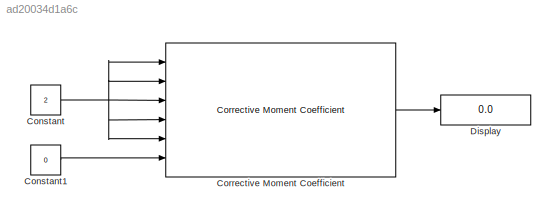
MODEL slx_ad20034d1a6c
KIND model
BLOCK [Constant] Constant
  Value = 2
BLOCK [Constant] Constant1
  Value = 0
BLOCK [Reference] Corrective Moment Coefficient  REF=rocket_angular_flight_library/Corrective Moment Coefficient
  Ports = [6, 1]
  SourceBlock = rocket_angular_flight_library/Corrective Moment Coefficient
  SourceType = SubSystem
BLOCK [Display] Display
  Decimation = 1
  Ports = [1]
LINE Constant1:1 -> Corrective Moment Coefficient:6
NET Constant:1 -> Corrective Moment Coefficient:1, Corrective Moment Coefficient:2, Corrective Moment Coefficient:3, Corrective Moment Coefficient:4, Corrective Moment Coefficient:5
LINE Corrective Moment Coefficient:1 -> Display:1
note: NET lines group one-source signal fan-out (src -> all destinations, sorted); 1:1 wires keep LINE
